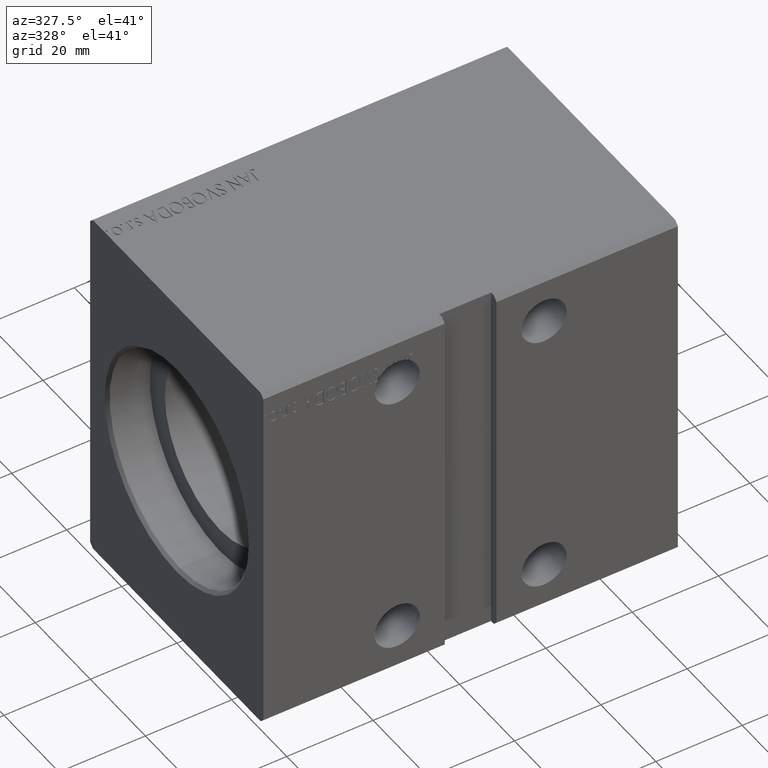
[diagram: clean part render]
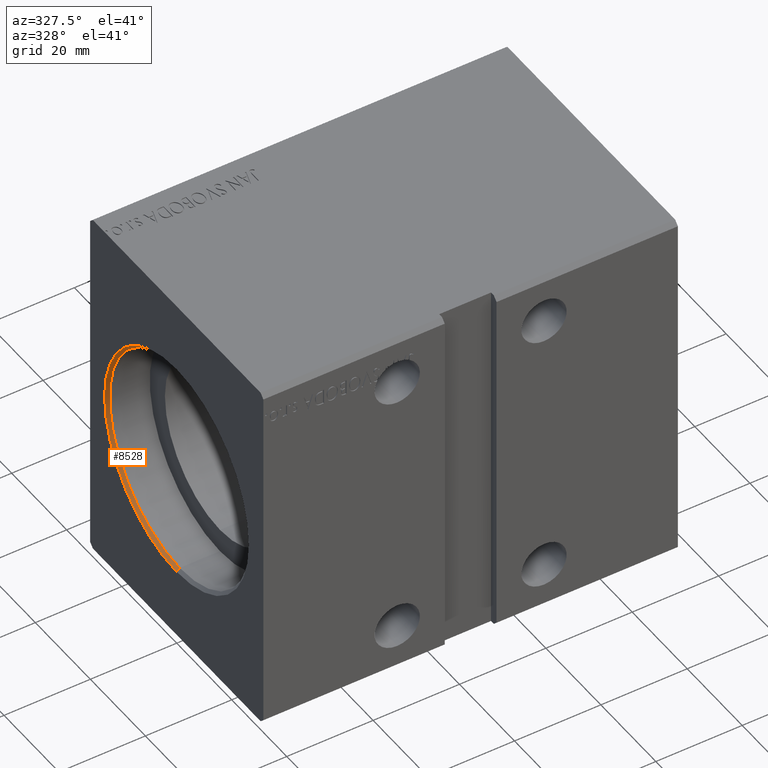
[diagram: same view with one face highlighted and labeled with its STEP entity id]
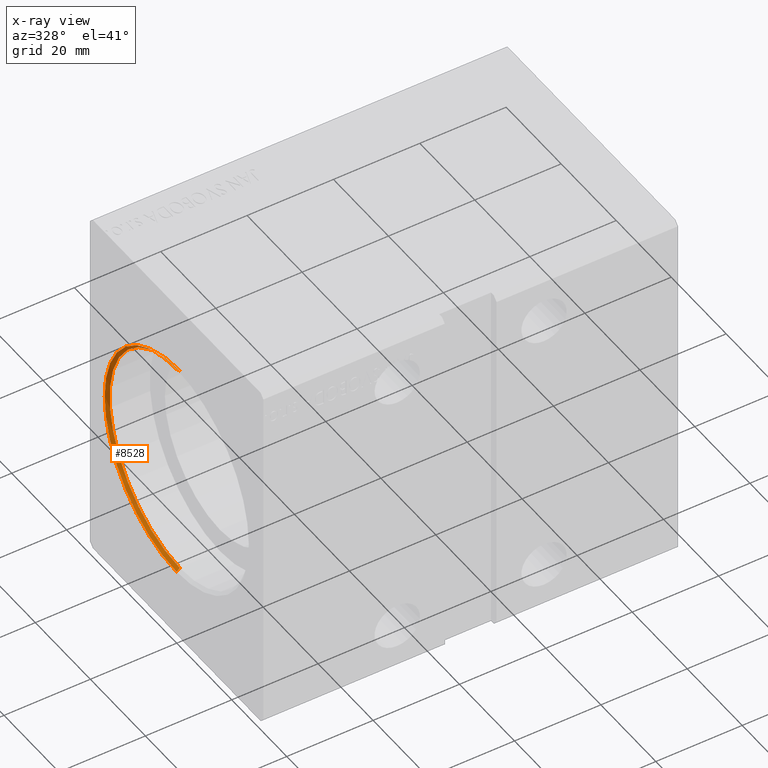
[diagram: x-ray of the same camera — body ghosted, the highlighted face saturated]
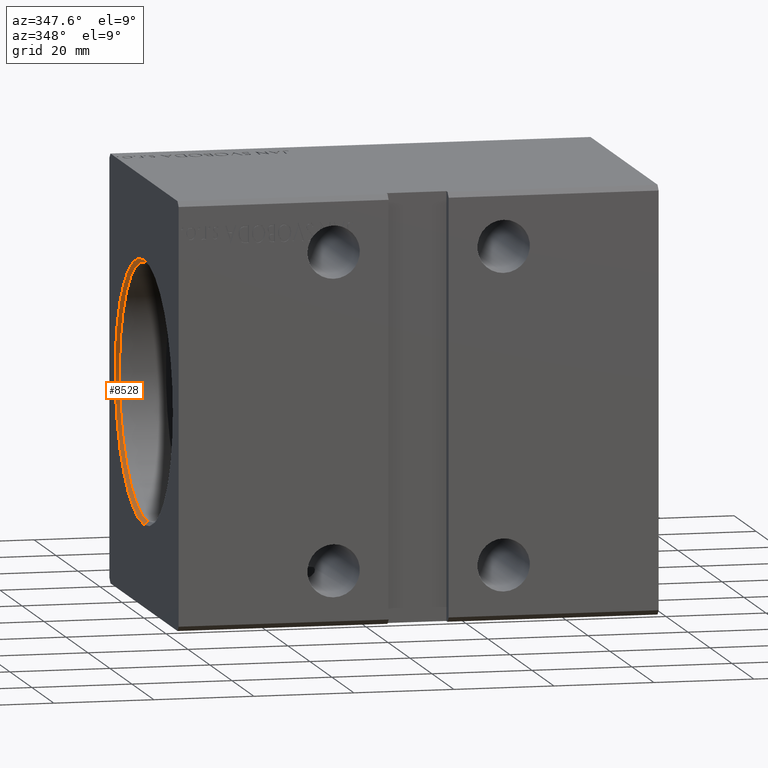
[diagram: same view with one face highlighted and labeled with its STEP entity id]
A machine part, auxiliary view. The second image highlights one B-rep face of the part: STEP entity #8528.
The next image is the same camera in x-ray: the body ghosted, the highlighted face saturated — about 0% of this face is hidden behind the body in this view.
A second angle (auxiliary view) of the same face is appended — the face is thin or edge-on in the first view.
In plain terms, the highlighted conical surface has half-angle 45 deg.
Its self-contained STEP definition (entity closure, byte-faithful):
#36 = AXIS2_PLACEMENT_3D ( 'NONE', #24518, #27914, #24101 ) ;
#3116 = DIRECTION ( 'NONE',  ( -0.7071067811865422437, 8.659560562354996953E-17, -0.7071067811865527908 ) ) ;
#3433 = EDGE_CURVE ( 'NONE', #38888, #40711, #4783, .T. ) ;
#3598 = CARTESIAN_POINT ( 'NONE',  ( 0.000000000000000000, 0.000000000000000000, 0.000000000000000000 ) ) ;
#4783 = CIRCLE ( 'NONE', #36, 25.50000000000000000 ) ;
#5515 = CARTESIAN_POINT ( 'NONE',  ( 0.000000000000000000, 0.000000000000000000, 26.19999999999998863 ) ) ;
#8347 = ORIENTED_EDGE ( 'NONE', *, *, #41102, .F. ) ;
#8528 = ADVANCED_FACE ( 'NONE', ( #18382 ), #41027, .F. ) ;
#11122 = AXIS2_PLACEMENT_3D ( 'NONE', #14335, #17532, #27741 ) ;
#12037 = ORIENTED_EDGE ( 'NONE', *, *, #28244, .T. ) ;
#12563 = LINE ( 'NONE', #32348, #20421 ) ;
#13818 = ORIENTED_EDGE ( 'NONE', *, *, #33697, .F. ) ;
#14335 = CARTESIAN_POINT ( 'NONE',  ( 0.6999999999999784173, 0.000000000000000000, 0.000000000000000000 ) ) ;
#14642 = VERTEX_POINT ( 'NONE', #5515 ) ;
#16536 = ORIENTED_EDGE ( 'NONE', *, *, #3433, .F. ) ;
#17532 = DIRECTION ( 'NONE',  ( -1.000000000000000000, 0.000000000000000000, 0.000000000000000000 ) ) ;
#18382 = FACE_OUTER_BOUND ( 'NONE', #36891, .T. ) ;
#20421 = VECTOR ( 'NONE', #37896, 1000.000000000000000 ) ;
#22624 = AXIS2_PLACEMENT_3D ( 'NONE', #3598, #26177, #26795 ) ;
#23182 = CARTESIAN_POINT ( 'NONE',  ( 0.000000000000000000, 3.208574613766063722E-15, -26.19999999999998863 ) ) ;
#23277 = VECTOR ( 'NONE', #3116, 1000.000000000000000 ) ;
#24101 = DIRECTION ( 'NONE',  ( 0.000000000000000000, 0.000000000000000000, -1.000000000000000000 ) ) ;
#24518 = CARTESIAN_POINT ( 'NONE',  ( 0.6999999999999784173, 0.000000000000000000, 0.000000000000000000 ) ) ;
#26177 = DIRECTION ( 'NONE',  ( 1.000000000000000000, 0.000000000000000000, 0.000000000000000000 ) ) ;
#26795 = DIRECTION ( 'NONE',  ( 0.000000000000000000, 0.000000000000000000, -1.000000000000000000 ) ) ;
#27383 = CIRCLE ( 'NONE', #22624, 26.19999999999998863 ) ;
#27741 = DIRECTION ( 'NONE',  ( 0.000000000000000000, 0.000000000000000000, 1.000000000000000000 ) ) ;
#27914 = DIRECTION ( 'NONE',  ( -1.000000000000000000, 0.000000000000000000, 0.000000000000000000 ) ) ;
#28244 = EDGE_CURVE ( 'NONE', #38888, #14642, #12563, .T. ) ;
#32348 = CARTESIAN_POINT ( 'NONE',  ( 0.6999999999999784173, 0.000000000000000000, 25.50000000000000000 ) ) ;
#33697 = EDGE_CURVE ( 'NONE', #40711, #41029, #41637, .T. ) ;
#34158 = CARTESIAN_POINT ( 'NONE',  ( 0.6999999999999784173, 0.000000000000000000, 25.50000000000000000 ) ) ;
#36891 = EDGE_LOOP ( 'NONE', ( #13818, #16536, #12037, #8347 ) ) ;
#36936 = CARTESIAN_POINT ( 'NONE',  ( 0.6999999999999784173, 3.122849337825750222E-15, -25.50000000000000000 ) ) ;
#37896 = DIRECTION ( 'NONE',  ( -0.7071067811865422437, 0.000000000000000000, 0.7071067811865527908 ) ) ;
#38888 = VERTEX_POINT ( 'NONE', #34158 ) ;
#39295 = CARTESIAN_POINT ( 'NONE',  ( 0.6999999999999784173, 3.122849337825750222E-15, -25.50000000000000000 ) ) ;
#40711 = VERTEX_POINT ( 'NONE', #36936 ) ;
#41027 = CONICAL_SURFACE ( 'NONE', #11122, 25.50000000000000000, 0.7853981633974557175 ) ;
#41029 = VERTEX_POINT ( 'NONE', #23182 ) ;
#41102 = EDGE_CURVE ( 'NONE', #41029, #14642, #27383, .T. ) ;
#41637 = LINE ( 'NONE', #39295, #23277 ) ;